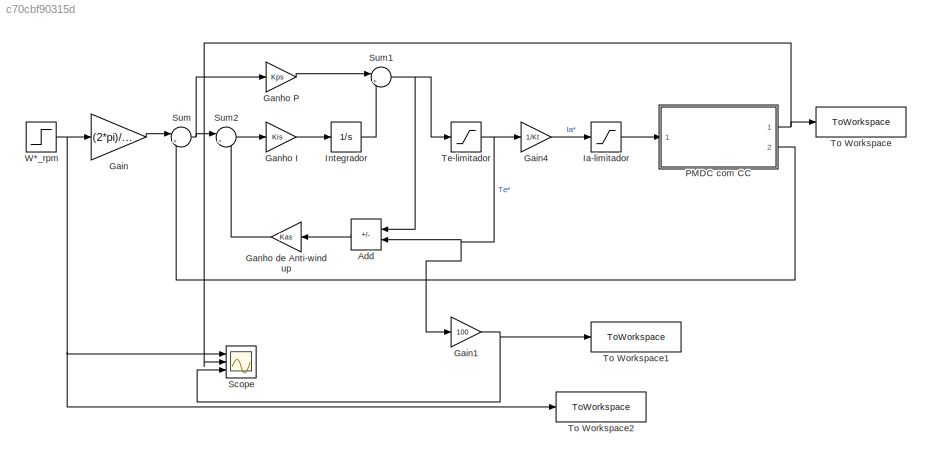
MODEL slx_c70cbf90315d
KIND model
CONFIG AbsTol = auto
CONFIG EnableMultiTasking = off
CONFIG FixedStep = 1e-5
CONFIG MaxStep = auto
CONFIG MinStep = auto
CONFIG RelTol = 1e-3
CONFIG SampleTimeConstraint = Unconstrained
CONFIG SolverName = ode4
CONFIG StartTime = 00
CONFIG StopTime = 0.2
BLOCK [Sum] Add
  IconShape = rectangular
  Inputs = +-
  NameLocation = top
  Ports = [2, 1]
BLOCK [Gain] Gain
  Gain = (2*pi)/60
BLOCK [Gain] Gain1
  Gain = 100
BLOCK [Gain] Gain4
  Gain = 1/Kt
BLOCK [Gain] Ganho I
  Gain = Kis
BLOCK [Gain] Ganho P
  Gain = Kps
BLOCK [Gain] Ganho de Anti-wind up
  Gain = Kas
  NameLocation = top
BLOCK [Saturate] Ia-limitador
  LowerLimit = -Ia_rated
  UpperLimit = Ia_rated
BLOCK [Integrator] Integrador
  Ports = [1, 1]
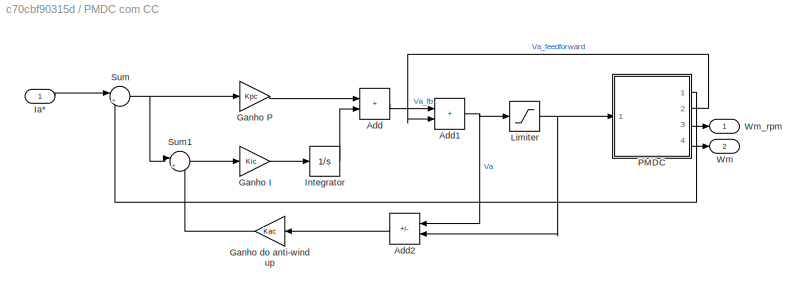
BLOCK [SubSystem] PMDC com CC
  Ports = [1, 2]
  RequestExecContextInheritance = off
BLOCK [Sum] PMDC com CC/Add
  IconShape = rectangular
  Ports = [2, 1]
BLOCK [Sum] PMDC com CC/Add1
  IconShape = rectangular
  Ports = [2, 1]
BLOCK [Sum] PMDC com CC/Add2
  IconShape = rectangular
  Inputs = +-
  NameLocation = top
  Ports = [2, 1]
BLOCK [Gain] PMDC com CC/Ganho I
  Gain = Kic
BLOCK [Gain] PMDC com CC/Ganho P
  Gain = Kpc
BLOCK [Gain] PMDC com CC/Ganho do anti-wind up
  Gain = Kac
  NameLocation = top
BLOCK [Inport] PMDC com CC/Ia*
BLOCK [Integrator] PMDC com CC/Integrator
  Ports = [1, 1]
BLOCK [Saturate] PMDC com CC/Limiter
  LowerLimit = -Va_rated
  UpperLimit = Va_rated
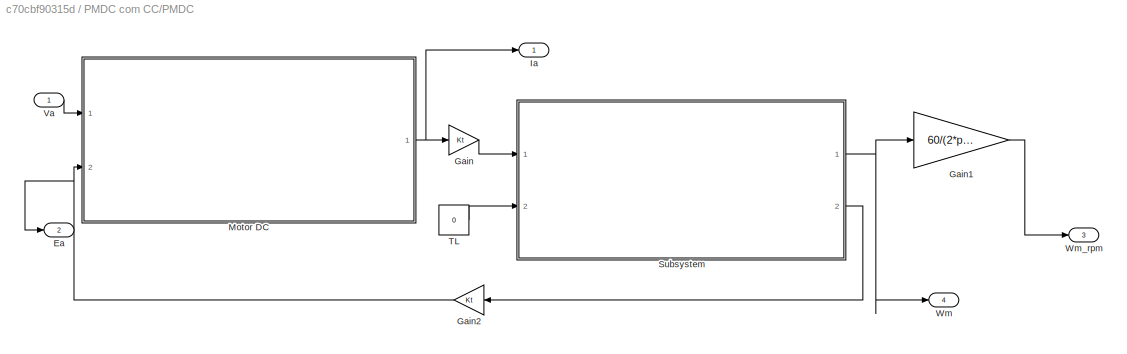
BLOCK [SubSystem] PMDC com CC/PMDC
  Ports = [1, 4]
  RequestExecContextInheritance = off
BLOCK [Outport] PMDC com CC/PMDC/Ea
  IconDisplay = Signal name
  Port = 2
BLOCK [Gain] PMDC com CC/PMDC/Gain
  Gain = Kt
BLOCK [Gain] PMDC com CC/PMDC/Gain1
  Gain = 60/(2*pi)
BLOCK [Gain] PMDC com CC/PMDC/Gain2
  Gain = Kt
  NameLocation = top
BLOCK [Outport] PMDC com CC/PMDC/Ia
  IconDisplay = Signal name
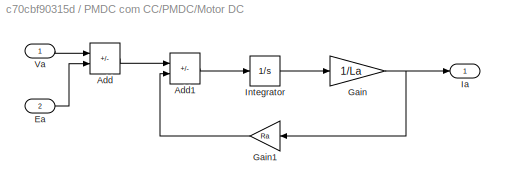
BLOCK [SubSystem] PMDC com CC/PMDC/Motor DC
  Ports = [2, 1]
  RequestExecContextInheritance = off
BLOCK [Sum] PMDC com CC/PMDC/Motor DC/Add
  IconShape = rectangular
  Inputs = +-
  Ports = [2, 1]
BLOCK [Sum] PMDC com CC/PMDC/Motor DC/Add1
  IconShape = rectangular
  Inputs = +-
  Ports = [2, 1]
BLOCK [Inport] PMDC com CC/PMDC/Motor DC/Ea
  Port = 2
BLOCK [Gain] PMDC com CC/PMDC/Motor DC/Gain
  Gain = 1/La
BLOCK [Gain] PMDC com CC/PMDC/Motor DC/Gain1
  Gain = Ra
  NameLocation = top
BLOCK [Outport] PMDC com CC/PMDC/Motor DC/Ia
BLOCK [Integrator] PMDC com CC/PMDC/Motor DC/Integrator
  Ports = [1, 1]
BLOCK [Inport] PMDC com CC/PMDC/Motor DC/Va
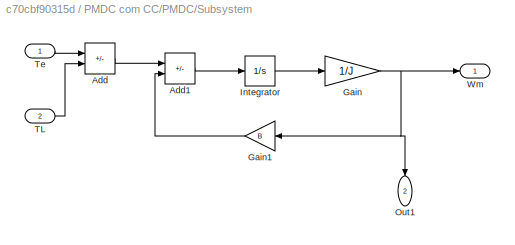
BLOCK [SubSystem] PMDC com CC/PMDC/Subsystem
  Ports = [2, 2]
  RequestExecContextInheritance = off
BLOCK [Sum] PMDC com CC/PMDC/Subsystem/Add
  IconShape = rectangular
  Inputs = +-
  Ports = [2, 1]
BLOCK [Sum] PMDC com CC/PMDC/Subsystem/Add1
  IconShape = rectangular
  Inputs = +-
  Ports = [2, 1]
BLOCK [Gain] PMDC com CC/PMDC/Subsystem/Gain
  Gain = 1/J
BLOCK [Gain] PMDC com CC/PMDC/Subsystem/Gain1
  Gain = B
  NameLocation = top
BLOCK [Integrator] PMDC com CC/PMDC/Subsystem/Integrator
  Ports = [1, 1]
BLOCK [Outport] PMDC com CC/PMDC/Subsystem/Out1
  NameLocation = left
  Port = 2
BLOCK [Inport] PMDC com CC/PMDC/Subsystem/TL
  Port = 2
BLOCK [Inport] PMDC com CC/PMDC/Subsystem/Te
BLOCK [Outport] PMDC com CC/PMDC/Subsystem/Wm
BLOCK [Constant] PMDC com CC/PMDC/TL
  Value = 0
BLOCK [Inport] PMDC com CC/PMDC/Va
BLOCK [Outport] PMDC com CC/PMDC/Wm
  Port = 4
BLOCK [Outport] PMDC com CC/PMDC/Wm_rpm
  Port = 3
BLOCK [Sum] PMDC com CC/Sum
  Inputs = |+-
  Ports = [2, 1]
BLOCK [Sum] PMDC com CC/Sum1
  Inputs = |+-
  Ports = [2, 1]
BLOCK [Outport] PMDC com CC/Wm
  Port = 2
BLOCK [Outport] PMDC com CC/Wm_rpm
BLOCK [Scope] Scope
  Floating = off
  NumInputPorts = 3
  Ports = [3]
  ScopeSpecificationString = Simulink.scopes.TimeScopeBlockCfg('CurrentConfiguration', extmgr.ConfigurationSet(extmgr.Configuration('Core','General UI',true),extmgr.Configuration('Core','Source UI',true),extmgr.Configuration('Sources','WiredSimulink',true),extmgr.Configuration('Visuals','Time Domain',true,'SerializedDisplays',{struct('MinYLimReal','-312.64041','MaxYLimReal','2813.76368','YLabelReal','','MinYLimMag',' 0.00000'...<+1466ch>
BLOCK [Sum] Sum
  Inputs = |+-
  Ports = [2, 1]
BLOCK [Sum] Sum1
  Inputs = |++
  Ports = [2, 1]
BLOCK [Sum] Sum2
  Inputs = |+-
  Ports = [2, 1]
BLOCK [Saturate] Te-limitador
  LowerLimit = -Te_rated
  UpperLimit = Te_rated
BLOCK [ToWorkspace] To Workspace
  FixptAsFi = on
  MaxDataPoints = inf
  Ports = [1]
  SampleTime = -1
  SaveFormat = Timeseries
  VariableName = Wm_rpm
BLOCK [ToWorkspace] To Workspace1
  FixptAsFi = on
  MaxDataPoints = inf
  Ports = [1]
  SampleTime = -1
  SaveFormat = Timeseries
  VariableName = Te_measure
BLOCK [ToWorkspace] To Workspace2
  FixptAsFi = on
  MaxDataPoints = inf
  Ports = [1]
  SampleTime = -1
  SaveFormat = Timeseries
  VariableName = W_rpm_ref
BLOCK [Step] W*_rpm
  After = 2500
  SampleTime = 0
  Time = 0.05
LINE Add:1 -> Ganho de Anti-wind up:1
NET Gain1:1 -> Scope:3, To Workspace1:1
LINE Gain4:1 -> Ia-limitador:1
LINE Gain:1 -> Sum:1
LINE Ganho I:1 -> Integrador:1
LINE Ganho P:1 -> Sum1:1
LINE Ganho de Anti-wind up:1 -> Sum2:2
LINE Ia-limitador:1 -> PMDC com CC:1
LINE Integrador:1 -> Sum1:2
NET PMDC com CC/Add1:1 -> PMDC com CC/Add2:1, PMDC com CC/Limiter:1
LINE PMDC com CC/Add2:1 -> PMDC com CC/Ganho do anti-wind up:1
LINE PMDC com CC/Add:1 -> PMDC com CC/Add1:1
LINE PMDC com CC/Ganho I:1 -> PMDC com CC/Integrator:1
LINE PMDC com CC/Ganho P:1 -> PMDC com CC/Add:1
LINE PMDC com CC/Ganho do anti-wind up:1 -> PMDC com CC/Sum1:2
LINE PMDC com CC/Ia*:1 -> PMDC com CC/Sum:1
LINE PMDC com CC/Integrator:1 -> PMDC com CC/Add:2
NET PMDC com CC/Limiter:1 -> PMDC com CC/Add2:2, PMDC com CC/PMDC:1
LINE PMDC com CC/PMDC/Gain1:1 -> PMDC com CC/PMDC/Wm_rpm:1
NET PMDC com CC/PMDC/Gain2:1 -> PMDC com CC/PMDC/Ea:1, PMDC com CC/PMDC/Motor DC:2
LINE PMDC com CC/PMDC/Gain:1 -> PMDC com CC/PMDC/Subsystem:1
LINE PMDC com CC/PMDC/Motor DC/Add1:1 -> PMDC com CC/PMDC/Motor DC/Integrator:1
LINE PMDC com CC/PMDC/Motor DC/Add:1 -> PMDC com CC/PMDC/Motor DC/Add1:1
LINE PMDC com CC/PMDC/Motor DC/Ea:1 -> PMDC com CC/PMDC/Motor DC/Add:2
LINE PMDC com CC/PMDC/Motor DC/Gain1:1 -> PMDC com CC/PMDC/Motor DC/Add1:2
NET PMDC com CC/PMDC/Motor DC/Gain:1 -> PMDC com CC/PMDC/Motor DC/Gain1:1, PMDC com CC/PMDC/Motor DC/Ia:1
LINE PMDC com CC/PMDC/Motor DC/Integrator:1 -> PMDC com CC/PMDC/Motor DC/Gain:1
LINE PMDC com CC/PMDC/Motor DC/Va:1 -> PMDC com CC/PMDC/Motor DC/Add:1
NET PMDC com CC/PMDC/Motor DC:1 -> PMDC com CC/PMDC/Gain:1, PMDC com CC/PMDC/Ia:1
LINE PMDC com CC/PMDC/Subsystem/Add1:1 -> PMDC com CC/PMDC/Subsystem/Integrator:1
LINE PMDC com CC/PMDC/Subsystem/Add:1 -> PMDC com CC/PMDC/Subsystem/Add1:1
LINE PMDC com CC/PMDC/Subsystem/Gain1:1 -> PMDC com CC/PMDC/Subsystem/Add1:2
NET PMDC com CC/PMDC/Subsystem/Gain:1 -> PMDC com CC/PMDC/Subsystem/Gain1:1, PMDC com CC/PMDC/Subsystem/Out1:1, PMDC com CC/PMDC/Subsystem/Wm:1
LINE PMDC com CC/PMDC/Subsystem/Integrator:1 -> PMDC com CC/PMDC/Subsystem/Gain:1
LINE PMDC com CC/PMDC/Subsystem/TL:1 -> PMDC com CC/PMDC/Subsystem/Add:2
LINE PMDC com CC/PMDC/Subsystem/Te:1 -> PMDC com CC/PMDC/Subsystem/Add:1
NET PMDC com CC/PMDC/Subsystem:1 -> PMDC com CC/PMDC/Gain1:1, PMDC com CC/PMDC/Wm:1
LINE PMDC com CC/PMDC/Subsystem:2 -> PMDC com CC/PMDC/Gain2:1
LINE PMDC com CC/PMDC/TL:1 -> PMDC com CC/PMDC/Subsystem:2
LINE PMDC com CC/PMDC/Va:1 -> PMDC com CC/PMDC/Motor DC:1
LINE PMDC com CC/PMDC:1 -> PMDC com CC/Sum:2
LINE PMDC com CC/PMDC:2 -> PMDC com CC/Add1:2
LINE PMDC com CC/PMDC:3 -> PMDC com CC/Wm_rpm:1
LINE PMDC com CC/PMDC:4 -> PMDC com CC/Wm:1
LINE PMDC com CC/Sum1:1 -> PMDC com CC/Ganho I:1
NET PMDC com CC/Sum:1 -> PMDC com CC/Ganho P:1, PMDC com CC/Sum1:1
NET PMDC com CC:1 -> Scope:2, To Workspace:1
LINE PMDC com CC:2 -> Sum:2
NET Sum1:1 -> Add:1, Te-limitador:1
LINE Sum2:1 -> Ganho I:1
NET Sum:1 -> Ganho P:1, Sum2:1
NET Te-limitador:1 -> Add:2, Gain1:1, Gain4:1
NET W*_rpm:1 -> Gain:1, Scope:1, To Workspace2:1
note: NET lines group one-source signal fan-out (src -> all destinations, sorted); 1:1 wires keep LINE
